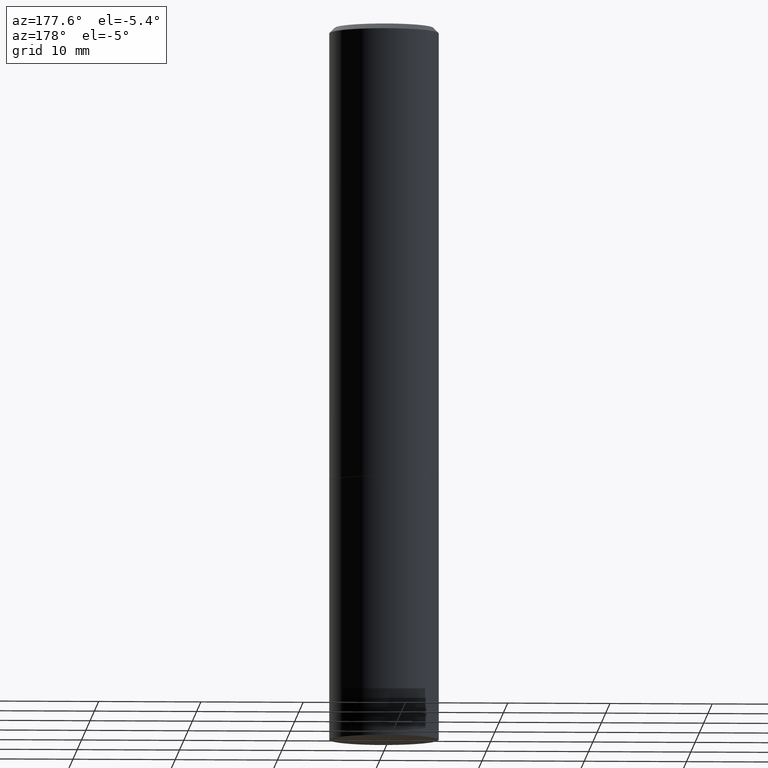
[diagram: clean part render]
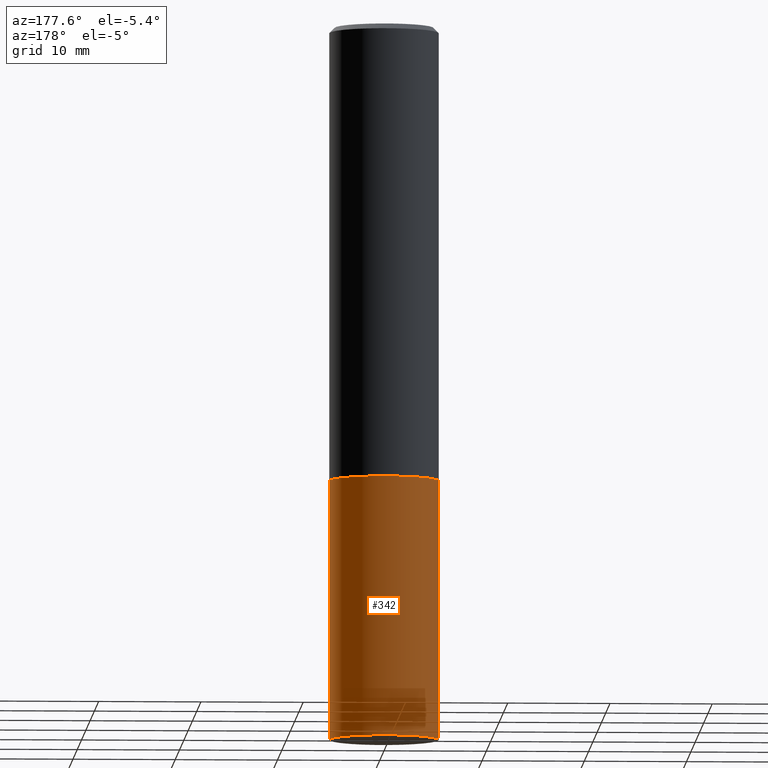
[diagram: same view with one face highlighted and labeled with its STEP entity id]
A machine part, auxiliary view. The second image highlights one B-rep face of the part: STEP entity #342.
In plain terms, the highlighted cylindrical surface (partial cylindrical patch) has radius 5.3581 mm, axis along (-0, 0, 1).
Its self-contained STEP definition (entity closure, byte-faithful):
#17 = EDGE_CURVE ( 'NONE', #157, #35, #105, .T. ) ;
#29 = DIRECTION ( 'NONE',  ( 1.000000000000000000, -6.982962677686266711E-15, 0.000000000000000000 ) ) ;
#35 = VERTEX_POINT ( 'NONE', #92 ) ;
#36 = DIRECTION ( 'NONE',  ( -2.445468806185136597E-29, 3.491481338843145583E-15, 1.000000000000000000 ) ) ;
#46 = ORIENTED_EDGE ( 'NONE', *, *, #253, .F. ) ;
#55 = CARTESIAN_POINT ( 'NONE',  ( 4.279570410823988484E-29, -6.110092342975504671E-15, -1.750000000000000000 ) ) ;
#57 = CARTESIAN_POINT ( 'NONE',  ( 0.2109499999999998321, -1.104879573444855385E-14, -2.750000000000000000 ) ) ;
#59 = CARTESIAN_POINT ( 'NONE',  ( 6.725039217009124520E-29, -9.601573681818649859E-15, -2.750000000000000000 ) ) ;
#86 = LINE ( 'NONE', #264, #356 ) ;
#90 = DIRECTION ( 'NONE',  ( -2.445468806185136597E-29, 3.491481338843145583E-15, 1.000000000000000000 ) ) ;
#92 = CARTESIAN_POINT ( 'NONE',  ( -0.2109499999999999986, -6.356943111311146524E-15, -1.750000000000000000 ) ) ;
#105 = LINE ( 'NONE', #184, #194 ) ;
#122 = ORIENTED_EDGE ( 'NONE', *, *, #241, .F. ) ;
#147 = DIRECTION ( 'NONE',  ( -2.445468806185136877E-29, 3.491481338843145188E-15, 1.000000000000000000 ) ) ;
#157 = VERTEX_POINT ( 'NONE', #353 ) ;
#170 = VERTEX_POINT ( 'NONE', #57 ) ;
#174 = AXIS2_PLACEMENT_3D ( 'NONE', #59, #90, #362 ) ;
#184 = CARTESIAN_POINT ( 'NONE',  ( -0.2109499999999999986, 1.498889901085931332E-15, -1.037649357289272522E-29 ) ) ;
#194 = VECTOR ( 'NONE', #312, 39.37007874015748143 ) ;
#195 = AXIS2_PLACEMENT_3D ( 'NONE', #55, #355, #29 ) ;
#214 = VERTEX_POINT ( 'NONE', #381 ) ;
#215 = CIRCLE ( 'NONE', #195, 0.2109499999999999986 ) ;
#227 = EDGE_LOOP ( 'NONE', ( #367, #235, #122, #46 ) ) ;
#235 = ORIENTED_EDGE ( 'NONE', *, *, #17, .T. ) ;
#241 = EDGE_CURVE ( 'NONE', #214, #35, #215, .T. ) ;
#242 = EDGE_CURVE ( 'NONE', #170, #157, #351, .T. ) ;
#253 = EDGE_CURVE ( 'NONE', #170, #214, #86, .T. ) ;
#262 = DIRECTION ( 'NONE',  ( 1.000000000000000000, -6.982962677686266711E-15, 4.876176775795936353E-29 ) ) ;
#264 = CARTESIAN_POINT ( 'NONE',  ( 0.2109499999999999986, -1.473055976857917959E-15, 1.028629490854152768E-29 ) ) ;
#299 = CYLINDRICAL_SURFACE ( 'NONE', #314, 0.2109499999999999986 ) ;
#312 = DIRECTION ( 'NONE',  ( -2.445468806185136877E-29, 3.491481338843145188E-15, 1.000000000000000000 ) ) ;
#314 = AXIS2_PLACEMENT_3D ( 'NONE', #324, #36, #262 ) ;
#324 = CARTESIAN_POINT ( 'NONE',  ( 0.000000000000000000, 0.000000000000000000, 0.000000000000000000 ) ) ;
#328 = FACE_OUTER_BOUND ( 'NONE', #227, .T. ) ;
#342 = ADVANCED_FACE ( 'NONE', ( #328 ), #299, .T. ) ;
#351 = CIRCLE ( 'NONE', #174, 0.2109499999999999986 ) ;
#353 = CARTESIAN_POINT ( 'NONE',  ( -0.2109499999999998321, -8.128517704960733872E-15, -2.750000000000000000 ) ) ;
#355 = DIRECTION ( 'NONE',  ( -2.445468806185136597E-29, 3.491481338843145583E-15, 1.000000000000000000 ) ) ;
#356 = VECTOR ( 'NONE', #147, 39.37007874015748143 ) ;
#362 = DIRECTION ( 'NONE',  ( 1.000000000000000000, -6.982962677686266711E-15, 0.000000000000000000 ) ) ;
#367 = ORIENTED_EDGE ( 'NONE', *, *, #242, .T. ) ;
#381 = CARTESIAN_POINT ( 'NONE',  ( 0.2109499999999999986, -7.583148319833423025E-15, -1.750000000000000000 ) ) ;